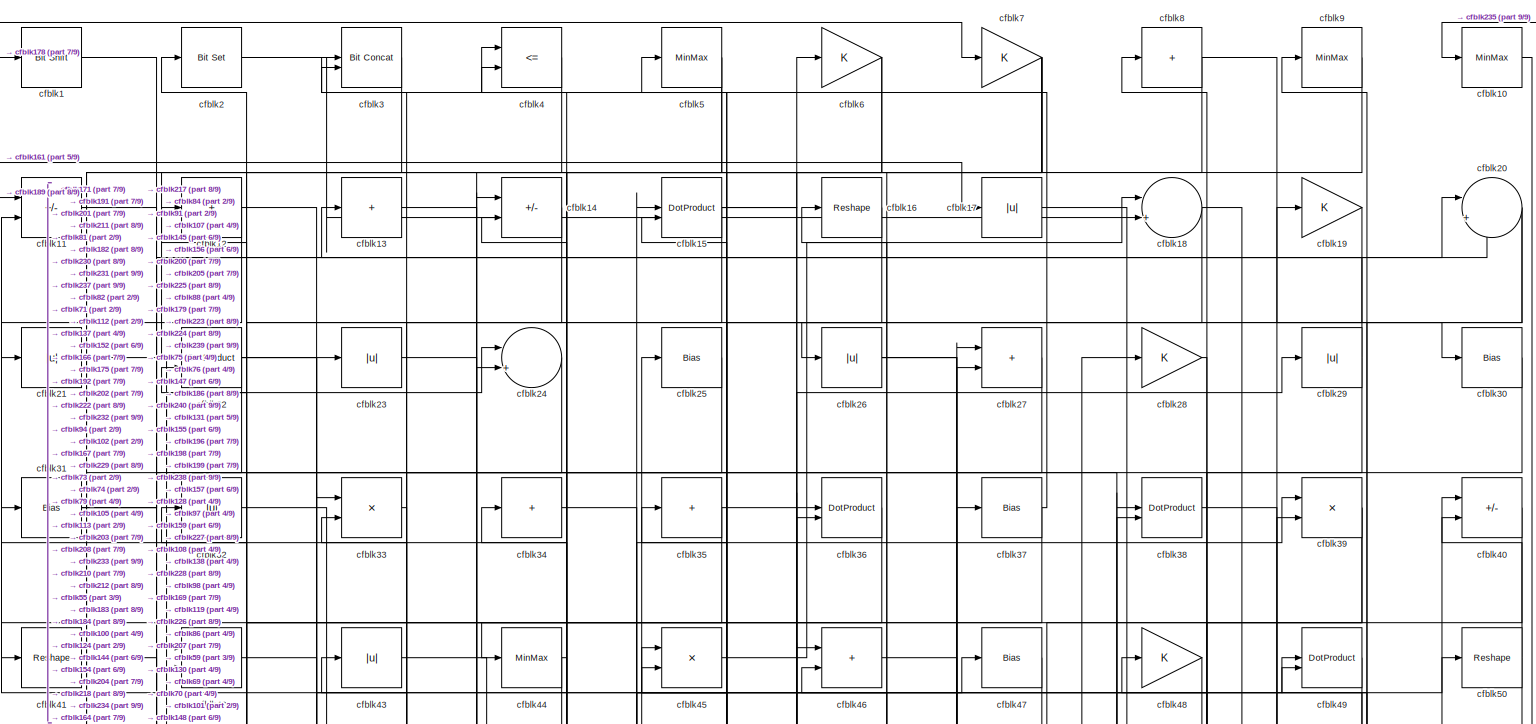
[diagram: root canvas - part 1/9, full width, top band]
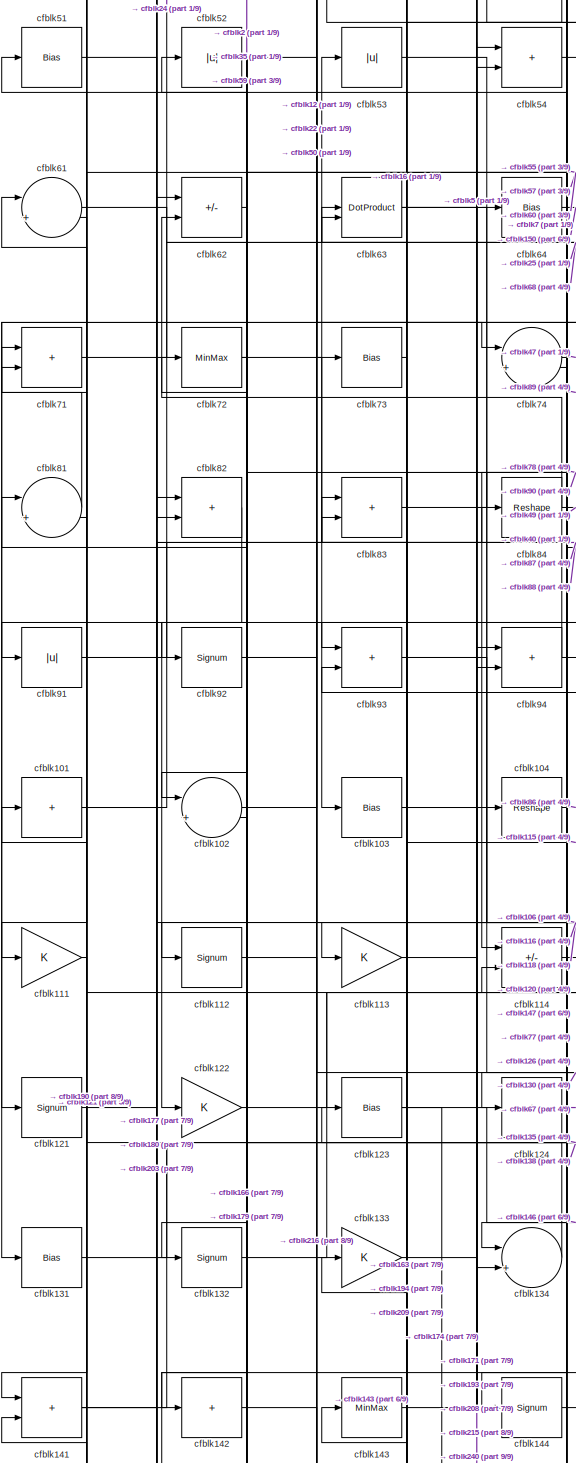
[diagram: root canvas - part 2/9, middle left region]
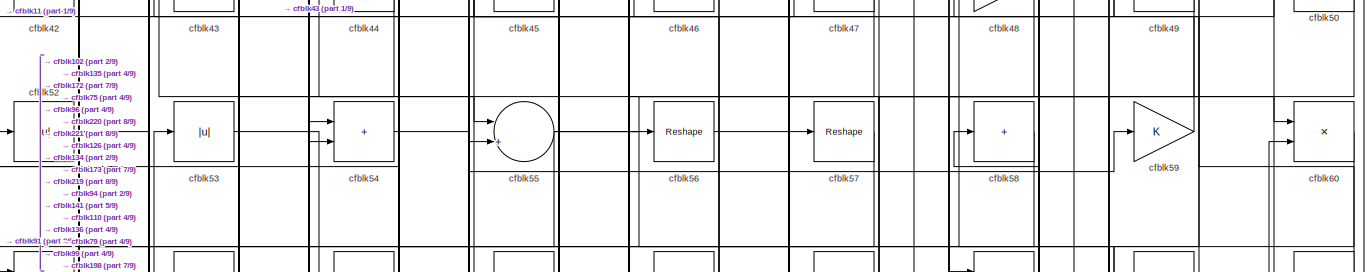
[diagram: root canvas - part 3/9, full width, top band]
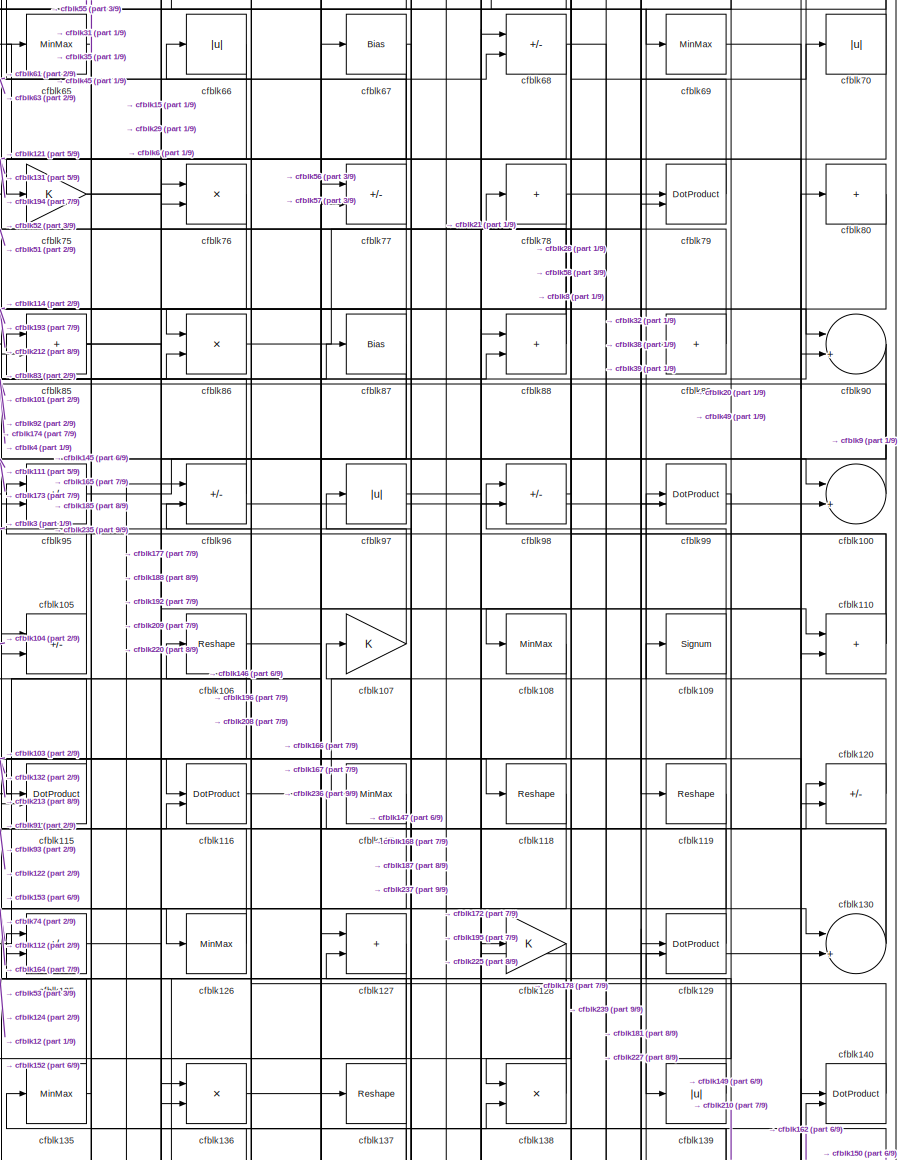
[diagram: root canvas - part 4/9, middle right region]
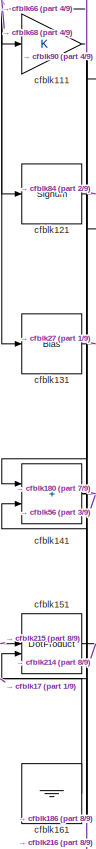
[diagram: root canvas - part 5/9, middle left region]
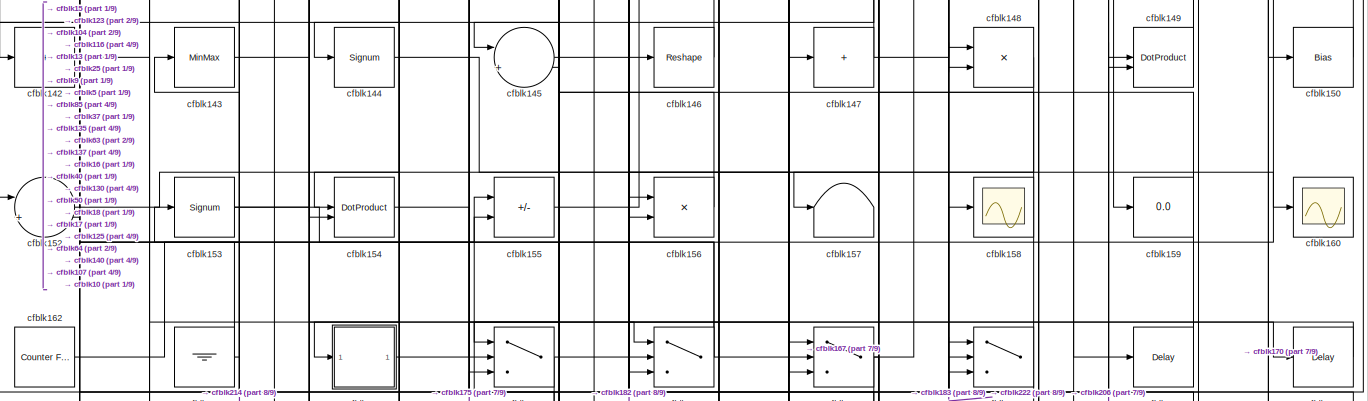
[diagram: root canvas - part 6/9, full width, middle band]
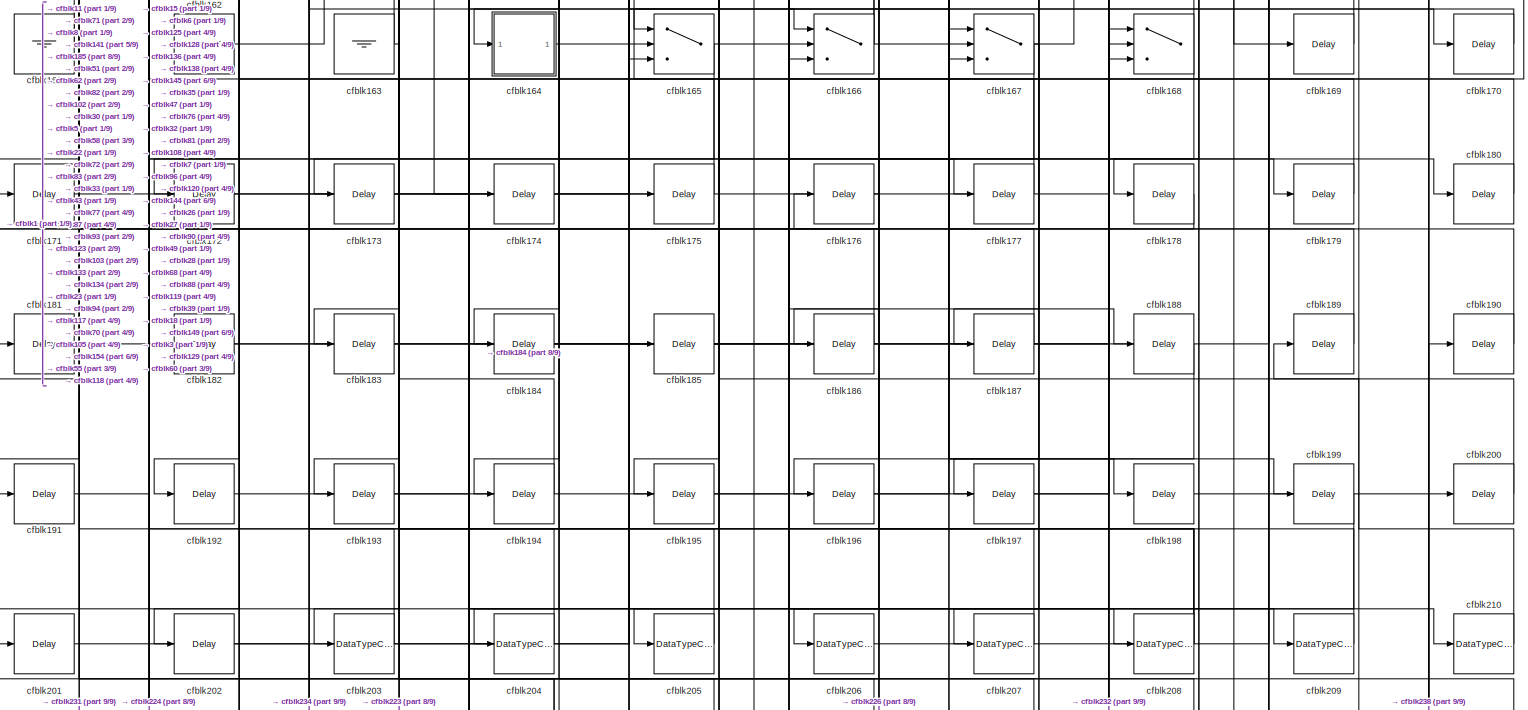
[diagram: root canvas - part 7/9, full width, bottom band]
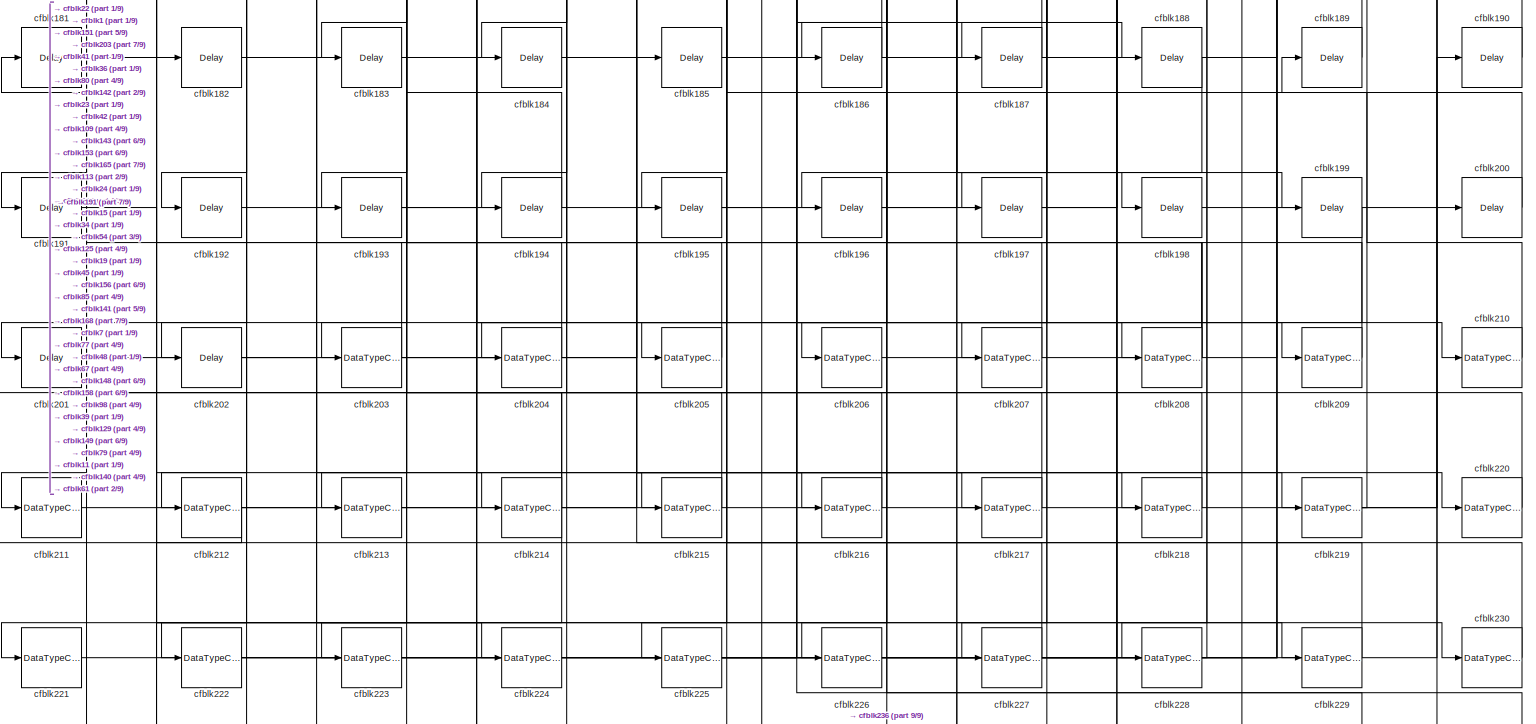
[diagram: root canvas - part 8/9, full width, bottom band]
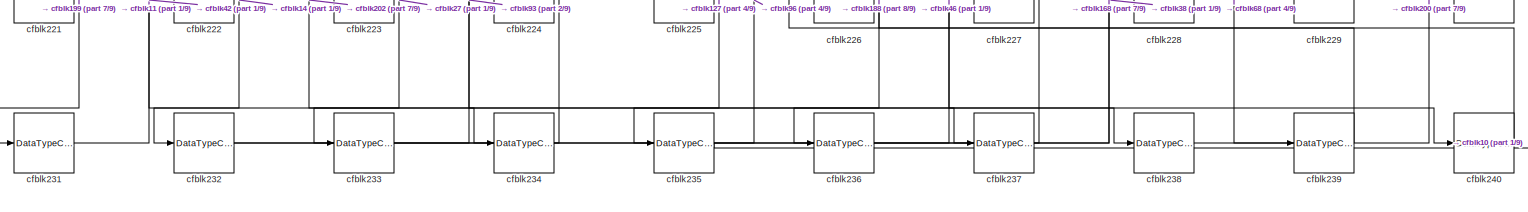
[diagram: root canvas - part 9/9, full width, bottom band]
MODEL slx_803804290df7
KIND model
CONFIG AbsTol = auto
CONFIG EnableMultiTasking = off
CONFIG FixedStep = auto
CONFIG MaxStep = auto
CONFIG MinStep = auto
CONFIG RelTol = 1e-3
CONFIG SampleTimeConstraint = Unconstrained
CONFIG SolverName = VariableStepAuto
CONFIG StartTime = 0.0
CONFIG StopTime = 10.0
BLOCK [Reference] cfblk1  REF=hdlsllib/Logic and Bit
Operations/Bit Shift
  SourceBlock = hdlsllib/Logic and Bit\nOperations/Bit Shift
  SourceType = Bit Shift
BLOCK [MinMax] cfblk10
BLOCK [Sum] cfblk100
  Inputs = |++
BLOCK [Sum] cfblk101
  IconShape = rectangular
  Inputs = +
BLOCK [Sum] cfblk102
  Inputs = |++
BLOCK [Bias] cfblk103
  Bias = 0.0
  SaturateOnIntegerOverflow = off
BLOCK [Reshape] cfblk104
BLOCK [Sum] cfblk105
  IconShape = rectangular
  Inputs = +-
BLOCK [Reshape] cfblk106
BLOCK [Gain] cfblk107
BLOCK [MinMax] cfblk108
BLOCK [Signum] cfblk109
BLOCK [Sum] cfblk11
  IconShape = rectangular
  Inputs = +-
BLOCK [Sum] cfblk110
  IconShape = rectangular
BLOCK [Gain] cfblk111
BLOCK [Signum] cfblk112
BLOCK [Gain] cfblk113
BLOCK [Sum] cfblk114
  IconShape = rectangular
  Inputs = +-
BLOCK [DotProduct] cfblk115
  OutDataTypeStr = Inherit: Inherit via internal rule
BLOCK [DotProduct] cfblk116
  OutDataTypeStr = Inherit: Inherit via internal rule
BLOCK [MinMax] cfblk117
BLOCK [Reshape] cfblk118
BLOCK [Reshape] cfblk119
BLOCK [Sum] cfblk12
  IconShape = rectangular
  Inputs = +
BLOCK [Sum] cfblk120
  IconShape = rectangular
  Inputs = +-
BLOCK [Signum] cfblk121
BLOCK [Gain] cfblk122
BLOCK [Bias] cfblk123
  Bias = 0.0
  SaturateOnIntegerOverflow = off
BLOCK [Sum] cfblk124
  IconShape = rectangular
  Inputs = +
BLOCK [Sum] cfblk125
  IconShape = rectangular
  Inputs = +-
BLOCK [MinMax] cfblk126
BLOCK [Sum] cfblk127
  IconShape = rectangular
BLOCK [Gain] cfblk128
BLOCK [DotProduct] cfblk129
  OutDataTypeStr = Inherit: Inherit via internal rule
BLOCK [Sum] cfblk13
  IconShape = rectangular
  Inputs = +
BLOCK [Sum] cfblk130
  Inputs = |++
BLOCK [Bias] cfblk131
  Bias = 0.0
  SaturateOnIntegerOverflow = off
BLOCK [Signum] cfblk132
BLOCK [Gain] cfblk133
BLOCK [Sum] cfblk134
  Inputs = |++
BLOCK [MinMax] cfblk135
BLOCK [Product] cfblk136
  Inputs = */
  RndMeth = Zero
  SaturateOnIntegerOverflow = on
BLOCK [Reshape] cfblk137
BLOCK [Product] cfblk138
  Inputs = */
  RndMeth = Zero
  SaturateOnIntegerOverflow = on
BLOCK [Abs] cfblk139
  SaturateOnIntegerOverflow = off
BLOCK [Sum] cfblk14
  IconShape = rectangular
  Inputs = +-
BLOCK [DotProduct] cfblk140
  OutDataTypeStr = Inherit: Inherit via internal rule
BLOCK [Sum] cfblk141
  IconShape = rectangular
BLOCK [Sum] cfblk142
  IconShape = rectangular
  Inputs = +
BLOCK [MinMax] cfblk143
BLOCK [Signum] cfblk144
BLOCK [Sum] cfblk145
  Inputs = |++
BLOCK [Reshape] cfblk146
BLOCK [Sum] cfblk147
  IconShape = rectangular
  Inputs = +
BLOCK [Product] cfblk148
  Inputs = */
  RndMeth = Zero
  SaturateOnIntegerOverflow = on
BLOCK [DotProduct] cfblk149
  OutDataTypeStr = Inherit: Inherit via internal rule
BLOCK [DotProduct] cfblk15
  OutDataTypeStr = Inherit: Inherit via internal rule
BLOCK [Bias] cfblk150
  Bias = 0.0
  SaturateOnIntegerOverflow = off
BLOCK [DotProduct] cfblk151
  OutDataTypeStr = Inherit: Inherit via internal rule
BLOCK [Sum] cfblk152
  Inputs = |++
BLOCK [Signum] cfblk153
BLOCK [DotProduct] cfblk154
  OutDataTypeStr = Inherit: Inherit via internal rule
BLOCK [Sum] cfblk155
  IconShape = rectangular
  Inputs = +-
BLOCK [Product] cfblk156
  Inputs = */
  RndMeth = Zero
  SaturateOnIntegerOverflow = on
BLOCK [Terminator] cfblk157
BLOCK [Scope] cfblk158
  Floating = off
  NumInputPorts = 1
  ScopeSpecificationString = Simulink.scopes.TimeScopeBlockCfg('CurrentConfiguration', extmgr.ConfigurationSet(extmgr.Configuration('Core','General UI',true),extmgr.Configuration('Core','Source UI',true),extmgr.Configuration('Sources','WiredSimulink',true,'DataLoggingVariableName','ScopeData2','DataLoggingSaveFormat','Array','DataLoggingLimitDataPoints',true,'DataLoggingDecimation','1'),extmgr.Configuration('Visuals','Time Do...<+868ch>
BLOCK [Display] cfblk159
  Decimation = 1
BLOCK [Reshape] cfblk16
BLOCK [Scope] cfblk160
  Floating = off
  NumInputPorts = 1
  ScopeSpecificationString = Simulink.scopes.TimeScopeBlockCfg('CurrentConfiguration', extmgr.ConfigurationSet(extmgr.Configuration('Core','General UI',true),extmgr.Configuration('Core','Source UI',true),extmgr.Configuration('Sources','WiredSimulink',true,'DataLoggingVariableName','ScopeData2','DataLoggingSaveFormat','Array','DataLoggingLimitDataPoints',true,'DataLoggingDecimation','1'),extmgr.Configuration('Visuals','Time Do...<+868ch>
BLOCK [Ground] cfblk161
BLOCK [Reference] cfblk162  REF=hdlsllib/Sources/Counter
Free-Running
  SourceBlock = hdlsllib/Sources/Counter\nFree-Running
  SourceType = Counter Free-Running
BLOCK [Ground] cfblk163
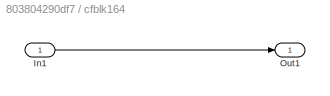
BLOCK [SubSystem] cfblk164
  LibrarySourceBlock = hdlsllib/Ports &\nSubsystems/Subsystem
BLOCK [Inport] cfblk164/In1
BLOCK [Outport] cfblk164/Out1
BLOCK [Switch] cfblk165
  InputSameDT = off
  SaturateOnIntegerOverflow = off
BLOCK [Switch] cfblk166
  InputSameDT = off
  SaturateOnIntegerOverflow = off
BLOCK [Switch] cfblk167
  InputSameDT = off
  SaturateOnIntegerOverflow = off
BLOCK [Switch] cfblk168
  InputSameDT = off
  SaturateOnIntegerOverflow = off
BLOCK [Delay] cfblk169
  InputPortMap = u0
  SampleTime = 1
BLOCK [Abs] cfblk17
  SaturateOnIntegerOverflow = off
BLOCK [Delay] cfblk170
  InputPortMap = u0
  SampleTime = 1
BLOCK [Delay] cfblk171
  InputPortMap = u0
  SampleTime = 1
BLOCK [Delay] cfblk172
  InputPortMap = u0
  SampleTime = 1
BLOCK [Delay] cfblk173
  InputPortMap = u0
  SampleTime = 1
BLOCK [Delay] cfblk174
  InputPortMap = u0
  SampleTime = 1
BLOCK [Delay] cfblk175
  InputPortMap = u0
  SampleTime = 1
BLOCK [Delay] cfblk176
  InputPortMap = u0
  SampleTime = 1
BLOCK [Delay] cfblk177
  InputPortMap = u0
  SampleTime = 1
BLOCK [Delay] cfblk178
  InputPortMap = u0
  SampleTime = 1
BLOCK [Delay] cfblk179
  InputPortMap = u0
  SampleTime = 1
BLOCK [Sum] cfblk18
  Inputs = |++
BLOCK [Delay] cfblk180
  InputPortMap = u0
  SampleTime = 1
BLOCK [Delay] cfblk181
  InputPortMap = u0
  SampleTime = 1
BLOCK [Delay] cfblk182
  InputPortMap = u0
  SampleTime = 1
BLOCK [Delay] cfblk183
  InputPortMap = u0
  SampleTime = 1
BLOCK [Delay] cfblk184
  InputPortMap = u0
  SampleTime = 1
BLOCK [Delay] cfblk185
  InputPortMap = u0
  SampleTime = 1
BLOCK [Delay] cfblk186
  InputPortMap = u0
  SampleTime = 1
BLOCK [Delay] cfblk187
  InputPortMap = u0
  SampleTime = 1
BLOCK [Delay] cfblk188
  InputPortMap = u0
  SampleTime = 1
BLOCK [Delay] cfblk189
  InputPortMap = u0
  SampleTime = 1
BLOCK [Gain] cfblk19
BLOCK [Delay] cfblk190
  InputPortMap = u0
  SampleTime = 1
BLOCK [Delay] cfblk191
  InputPortMap = u0
  SampleTime = 1
BLOCK [Delay] cfblk192
  InputPortMap = u0
  SampleTime = 1
BLOCK [Delay] cfblk193
  InputPortMap = u0
  SampleTime = 1
BLOCK [Delay] cfblk194
  InputPortMap = u0
  SampleTime = 1
BLOCK [Delay] cfblk195
  InputPortMap = u0
  SampleTime = 1
BLOCK [Delay] cfblk196
  InputPortMap = u0
  SampleTime = 1
BLOCK [Delay] cfblk197
  InputPortMap = u0
  SampleTime = 1
BLOCK [Delay] cfblk198
  InputPortMap = u0
  SampleTime = 1
BLOCK [Delay] cfblk199
  InputPortMap = u0
  SampleTime = 1
BLOCK [Reference] cfblk2  REF=simulink/Logic and Bit
Operations/Bit Set
  LibrarySourceBlock = hdlsllib/Logic and Bit\nOperations/Bit Set
  SourceBlock = simulink/Logic and Bit\nOperations/Bit Set
  SourceType = Bit Set
BLOCK [Sum] cfblk20
  Inputs = |++
BLOCK [Delay] cfblk200
  InputPortMap = u0
  SampleTime = 1
BLOCK [Delay] cfblk201
  InputPortMap = u0
  SampleTime = 1
BLOCK [Delay] cfblk202
  InputPortMap = u0
  SampleTime = 1
BLOCK [DataTypeConversion] cfblk203
  RndMeth = Floor
  SaturateOnIntegerOverflow = off
BLOCK [DataTypeConversion] cfblk204
  OutDataTypeStr = uint8
  RndMeth = Floor
  SaturateOnIntegerOverflow = off
BLOCK [DataTypeConversion] cfblk205
  OutDataTypeStr = uint8
  RndMeth = Floor
  SaturateOnIntegerOverflow = off
BLOCK [DataTypeConversion] cfblk206
  OutDataTypeStr = uint8
  RndMeth = Floor
  SaturateOnIntegerOverflow = off
BLOCK [DataTypeConversion] cfblk207
  OutDataTypeStr = uint8
  RndMeth = Floor
  SaturateOnIntegerOverflow = off
BLOCK [DataTypeConversion] cfblk208
  RndMeth = Floor
  SaturateOnIntegerOverflow = off
BLOCK [DataTypeConversion] cfblk209
  OutDataTypeStr = uint8
  RndMeth = Floor
  SaturateOnIntegerOverflow = off
BLOCK [Abs] cfblk21
  SaturateOnIntegerOverflow = off
BLOCK [DataTypeConversion] cfblk210
  OutDataTypeStr = uint8
  RndMeth = Floor
  SaturateOnIntegerOverflow = off
BLOCK [DataTypeConversion] cfblk211
  OutDataTypeStr = uint8
  RndMeth = Floor
  SaturateOnIntegerOverflow = off
BLOCK [DataTypeConversion] cfblk212
  RndMeth = Floor
  SaturateOnIntegerOverflow = off
BLOCK [DataTypeConversion] cfblk213
  OutDataTypeStr = uint8
  RndMeth = Floor
  SaturateOnIntegerOverflow = off
BLOCK [DataTypeConversion] cfblk214
  RndMeth = Floor
  SaturateOnIntegerOverflow = off
BLOCK [DataTypeConversion] cfblk215
  OutDataTypeStr = uint8
  RndMeth = Floor
  SaturateOnIntegerOverflow = off
BLOCK [DataTypeConversion] cfblk216
  OutDataTypeStr = uint8
  RndMeth = Floor
  SaturateOnIntegerOverflow = off
BLOCK [DataTypeConversion] cfblk217
  OutDataTypeStr = uint8
  RndMeth = Floor
  SaturateOnIntegerOverflow = off
BLOCK [DataTypeConversion] cfblk218
  OutDataTypeStr = uint8
  RndMeth = Floor
  SaturateOnIntegerOverflow = off
BLOCK [DataTypeConversion] cfblk219
  RndMeth = Floor
  SaturateOnIntegerOverflow = off
BLOCK [DotProduct] cfblk22
  OutDataTypeStr = Inherit: Inherit via internal rule
BLOCK [DataTypeConversion] cfblk220
  OutDataTypeStr = uint8
  RndMeth = Floor
  SaturateOnIntegerOverflow = off
BLOCK [DataTypeConversion] cfblk221
  OutDataTypeStr = uint8
  RndMeth = Floor
  SaturateOnIntegerOverflow = off
BLOCK [DataTypeConversion] cfblk222
  RndMeth = Floor
  SaturateOnIntegerOverflow = off
BLOCK [DataTypeConversion] cfblk223
  OutDataTypeStr = uint8
  RndMeth = Floor
  SaturateOnIntegerOverflow = off
BLOCK [DataTypeConversion] cfblk224
  OutDataTypeStr = uint8
  RndMeth = Floor
  SaturateOnIntegerOverflow = off
BLOCK [DataTypeConversion] cfblk225
  RndMeth = Floor
  SaturateOnIntegerOverflow = off
BLOCK [DataTypeConversion] cfblk226
  OutDataTypeStr = uint8
  RndMeth = Floor
  SaturateOnIntegerOverflow = off
BLOCK [DataTypeConversion] cfblk227
  RndMeth = Floor
  SaturateOnIntegerOverflow = off
BLOCK [DataTypeConversion] cfblk228
  OutDataTypeStr = uint8
  RndMeth = Floor
  SaturateOnIntegerOverflow = off
BLOCK [DataTypeConversion] cfblk229
  OutDataTypeStr = uint8
  RndMeth = Floor
  SaturateOnIntegerOverflow = off
BLOCK [Abs] cfblk23
  SaturateOnIntegerOverflow = off
BLOCK [DataTypeConversion] cfblk230
  OutDataTypeStr = uint8
  RndMeth = Floor
  SaturateOnIntegerOverflow = off
BLOCK [DataTypeConversion] cfblk231
  OutDataTypeStr = uint8
  RndMeth = Floor
  SaturateOnIntegerOverflow = off
BLOCK [DataTypeConversion] cfblk232
  RndMeth = Floor
  SaturateOnIntegerOverflow = off
BLOCK [DataTypeConversion] cfblk233
  OutDataTypeStr = uint8
  RndMeth = Floor
  SaturateOnIntegerOverflow = off
BLOCK [DataTypeConversion] cfblk234
  OutDataTypeStr = uint8
  RndMeth = Floor
  SaturateOnIntegerOverflow = off
BLOCK [DataTypeConversion] cfblk235
  RndMeth = Floor
  SaturateOnIntegerOverflow = off
BLOCK [DataTypeConversion] cfblk236
  OutDataTypeStr = uint8
  RndMeth = Floor
  SaturateOnIntegerOverflow = off
BLOCK [DataTypeConversion] cfblk237
  OutDataTypeStr = uint8
  RndMeth = Floor
  SaturateOnIntegerOverflow = off
BLOCK [DataTypeConversion] cfblk238
  OutDataTypeStr = uint8
  RndMeth = Floor
  SaturateOnIntegerOverflow = off
BLOCK [DataTypeConversion] cfblk239
  OutDataTypeStr = uint8
  RndMeth = Floor
  SaturateOnIntegerOverflow = off
BLOCK [Sum] cfblk24
  Inputs = |++
BLOCK [DataTypeConversion] cfblk240
  OutDataTypeStr = uint8
  RndMeth = Floor
  SaturateOnIntegerOverflow = off
BLOCK [Bias] cfblk25
  Bias = 0.0
  SaturateOnIntegerOverflow = off
BLOCK [Abs] cfblk26
  SaturateOnIntegerOverflow = off
BLOCK [Sum] cfblk27
  IconShape = rectangular
BLOCK [Gain] cfblk28
BLOCK [Abs] cfblk29
  SaturateOnIntegerOverflow = off
BLOCK [Reference] cfblk3  REF=hdlsllib/Logic and Bit
Operations/Bit Concat
  SourceBlock = hdlsllib/Logic and Bit\nOperations/Bit Concat
  SourceType = Bit Concat
BLOCK [Bias] cfblk30
  Bias = 0.0
  SaturateOnIntegerOverflow = off
BLOCK [Bias] cfblk31
  Bias = 0.0
  SaturateOnIntegerOverflow = off
BLOCK [Abs] cfblk32
  SaturateOnIntegerOverflow = off
BLOCK [Product] cfblk33
  Inputs = */
  RndMeth = Zero
  SaturateOnIntegerOverflow = on
BLOCK [Sum] cfblk34
  IconShape = rectangular
  Inputs = +
BLOCK [Sum] cfblk35
  IconShape = rectangular
  Inputs = +
BLOCK [DotProduct] cfblk36
  OutDataTypeStr = Inherit: Inherit via internal rule
BLOCK [Bias] cfblk37
  Bias = 0.0
  SaturateOnIntegerOverflow = off
BLOCK [DotProduct] cfblk38
  OutDataTypeStr = Inherit: Inherit via internal rule
BLOCK [Product] cfblk39
  Inputs = */
  RndMeth = Zero
  SaturateOnIntegerOverflow = on
BLOCK [RelationalOperator] cfblk4
  InputSameDT = off
  Operator = <=
  OutDataTypeStr = boolean
BLOCK [Sum] cfblk40
  IconShape = rectangular
  Inputs = +-
BLOCK [Reshape] cfblk41
BLOCK [Product] cfblk42
  Inputs = */
  RndMeth = Zero
  SaturateOnIntegerOverflow = on
BLOCK [Abs] cfblk43
  SaturateOnIntegerOverflow = off
BLOCK [MinMax] cfblk44
BLOCK [Product] cfblk45
  Inputs = */
  RndMeth = Zero
  SaturateOnIntegerOverflow = on
BLOCK [Sum] cfblk46
  IconShape = rectangular
BLOCK [Bias] cfblk47
  Bias = 0.0
  SaturateOnIntegerOverflow = off
BLOCK [Gain] cfblk48
BLOCK [DotProduct] cfblk49
  OutDataTypeStr = Inherit: Inherit via internal rule
BLOCK [MinMax] cfblk5
BLOCK [Reshape] cfblk50
BLOCK [Bias] cfblk51
  Bias = 0.0
  SaturateOnIntegerOverflow = off
BLOCK [Abs] cfblk52
  SaturateOnIntegerOverflow = off
BLOCK [Abs] cfblk53
  SaturateOnIntegerOverflow = off
BLOCK [Sum] cfblk54
  IconShape = rectangular
BLOCK [Sum] cfblk55
  Inputs = |++
BLOCK [Reshape] cfblk56
BLOCK [Reshape] cfblk57
BLOCK [Sum] cfblk58
  IconShape = rectangular
  Inputs = +
BLOCK [Gain] cfblk59
BLOCK [Gain] cfblk6
BLOCK [Product] cfblk60
  Inputs = */
  RndMeth = Zero
  SaturateOnIntegerOverflow = on
BLOCK [Sum] cfblk61
  Inputs = |++
BLOCK [Sum] cfblk62
  IconShape = rectangular
  Inputs = +-
BLOCK [DotProduct] cfblk63
  OutDataTypeStr = Inherit: Inherit via internal rule
BLOCK [Bias] cfblk64
  Bias = 0.0
  SaturateOnIntegerOverflow = off
BLOCK [MinMax] cfblk65
BLOCK [Abs] cfblk66
  SaturateOnIntegerOverflow = off
BLOCK [Bias] cfblk67
  Bias = 0.0
  SaturateOnIntegerOverflow = off
BLOCK [Sum] cfblk68
  IconShape = rectangular
  Inputs = +-
BLOCK [MinMax] cfblk69
BLOCK [Gain] cfblk7
BLOCK [Abs] cfblk70
  SaturateOnIntegerOverflow = off
BLOCK [Sum] cfblk71
  IconShape = rectangular
BLOCK [MinMax] cfblk72
BLOCK [Bias] cfblk73
  Bias = 0.0
  SaturateOnIntegerOverflow = off
BLOCK [Sum] cfblk74
  Inputs = |++
BLOCK [Gain] cfblk75
BLOCK [Product] cfblk76
  Inputs = */
  RndMeth = Zero
  SaturateOnIntegerOverflow = on
BLOCK [Sum] cfblk77
  IconShape = rectangular
  Inputs = +-
BLOCK [Sum] cfblk78
  IconShape = rectangular
  Inputs = +
BLOCK [DotProduct] cfblk79
  OutDataTypeStr = Inherit: Inherit via internal rule
BLOCK [Sum] cfblk8
  IconShape = rectangular
  Inputs = +
BLOCK [Sum] cfblk80
  IconShape = rectangular
  Inputs = +
BLOCK [Sum] cfblk81
  Inputs = |++
BLOCK [Sum] cfblk82
  IconShape = rectangular
BLOCK [Sum] cfblk83
  IconShape = rectangular
BLOCK [Reshape] cfblk84
BLOCK [Sum] cfblk85
  IconShape = rectangular
BLOCK [Product] cfblk86
  Inputs = */
  RndMeth = Zero
  SaturateOnIntegerOverflow = on
BLOCK [Bias] cfblk87
  Bias = 0.0
  SaturateOnIntegerOverflow = off
BLOCK [Sum] cfblk88
  IconShape = rectangular
BLOCK [Sum] cfblk89
  IconShape = rectangular
  Inputs = +
BLOCK [MinMax] cfblk9
BLOCK [Sum] cfblk90
  Inputs = |++
BLOCK [Abs] cfblk91
  SaturateOnIntegerOverflow = off
BLOCK [Signum] cfblk92
BLOCK [Sum] cfblk93
  IconShape = rectangular
BLOCK [Sum] cfblk94
  IconShape = rectangular
BLOCK [Sum] cfblk95
  IconShape = rectangular
  Inputs = +-
BLOCK [Sum] cfblk96
  IconShape = rectangular
  Inputs = +-
BLOCK [Abs] cfblk97
  SaturateOnIntegerOverflow = off
BLOCK [Sum] cfblk98
  IconShape = rectangular
  Inputs = +-
BLOCK [DotProduct] cfblk99
  OutDataTypeStr = Inherit: Inherit via internal rule
LINE cfblk100:1 -> cfblk4:2
NET cfblk101:1 -> cfblk40:1, cfblk88:2
LINE cfblk102:1 -> cfblk50:1
NET cfblk103:1 -> cfblk116:1, cfblk166:1
LINE cfblk104:1 -> cfblk86:2
LINE cfblk105:1 -> cfblk3:1
NET cfblk106:1 -> cfblk132:1, cfblk137:1
LINE cfblk107:1 -> cfblk45:1
LINE cfblk108:1 -> cfblk196:1
NET cfblk109:1 -> cfblk213:1, cfblk98:1
LINE cfblk10:1 -> cfblk155:1
NET cfblk110:1 -> cfblk78:1, cfblk95:1
LINE cfblk111:1 -> cfblk141:1
LINE cfblk112:1 -> cfblk130:1
LINE cfblk113:1 -> cfblk215:1
LINE cfblk114:1 -> cfblk77:2
LINE cfblk115:1 -> cfblk83:1
LINE cfblk116:1 -> cfblk109:1
LINE cfblk117:1 -> cfblk164:1
LINE cfblk118:1 -> cfblk165:1
LINE cfblk119:1 -> cfblk178:1
NET cfblk11:1 -> cfblk201:1, cfblk237:1
LINE cfblk120:1 -> cfblk99:1
LINE cfblk121:1 -> cfblk84:1
LINE cfblk122:1 -> cfblk89:1
NET cfblk123:1 -> cfblk146:1, cfblk174:1
LINE cfblk124:1 -> cfblk67:1
LINE cfblk125:1 -> cfblk209:1
LINE cfblk126:1 -> cfblk61:1
LINE cfblk127:1 -> cfblk235:1
LINE cfblk128:1 -> cfblk166:3
LINE cfblk129:1 -> cfblk66:1
NET cfblk12:1 -> cfblk73:1, cfblk81:2
NET cfblk130:1 -> cfblk49:1, cfblk74:2
LINE cfblk131:1 -> cfblk27:2
LINE cfblk132:1 -> cfblk114:2
LINE cfblk133:1 -> cfblk208:1
LINE cfblk134:1 -> cfblk123:1
NET cfblk135:1 -> cfblk52:1, cfblk63:2, cfblk65:1
LINE cfblk136:1 -> cfblk57:1
NET cfblk137:1 -> cfblk12:1, cfblk152:1
LINE cfblk138:1 -> cfblk101:1
LINE cfblk139:1 -> cfblk97:1
LINE cfblk13:1 -> cfblk154:2
LINE cfblk140:1 -> cfblk106:1
NET cfblk141:1 -> cfblk180:1, cfblk56:1
LINE cfblk142:1 -> cfblk216:1
LINE cfblk143:1 -> cfblk104:1
LINE cfblk144:1 -> cfblk167:1
LINE cfblk145:1 -> cfblk170:1
LINE cfblk146:1 -> cfblk135:1
NET cfblk147:1 -> cfblk130:2, cfblk16:1
LINE cfblk148:1 -> cfblk156:2
NET cfblk149:1 -> cfblk125:1, cfblk85:1
LINE cfblk14:1 -> cfblk232:1
LINE cfblk150:1 -> cfblk107:1
LINE cfblk151:1 -> cfblk214:1
LINE cfblk152:1 -> cfblk160:1
NET cfblk153:1 -> cfblk116:2, cfblk155:2
LINE cfblk154:1 -> cfblk175:1
LINE cfblk155:1 -> cfblk37:1
LINE cfblk156:1 -> cfblk5:1
NET cfblk15:1 -> cfblk100:2, cfblk152:2, cfblk6:1
LINE cfblk161:1 -> cfblk17:1
LINE cfblk162:1 -> cfblk140:2
NET cfblk163:1 -> cfblk72:1, cfblk83:2
LINE cfblk164/In1:1 -> cfblk164/Out1:1
LINE cfblk164:1 -> cfblk39:1
NET cfblk165:1 -> cfblk138:2, cfblk223:1
NET cfblk166:1 -> cfblk120:1, cfblk32:1, cfblk81:1
NET cfblk167:1 -> cfblk195:1, cfblk197:1, cfblk28:1
NET cfblk168:1 -> cfblk117:1, cfblk226:1
LINE cfblk169:1 -> cfblk3:2
LINE cfblk16:1 -> cfblk113:1
LINE cfblk170:1 -> cfblk165:2
LINE cfblk171:1 -> cfblk94:1
LINE cfblk172:1 -> cfblk68:1
LINE cfblk173:1 -> cfblk55:2
LINE cfblk174:1 -> cfblk105:1
LINE cfblk175:1 -> cfblk22:2
LINE cfblk176:1 -> cfblk206:1
LINE cfblk177:1 -> cfblk76:1
LINE cfblk178:1 -> cfblk1:1
LINE cfblk179:1 -> cfblk102:2
LINE cfblk17:1 -> cfblk159:1
LINE cfblk180:1 -> cfblk62:1
LINE cfblk181:1 -> cfblk129:1
LINE cfblk182:1 -> cfblk156:1
LINE cfblk183:1 -> cfblk148:1
LINE cfblk184:1 -> cfblk168:2
LINE cfblk185:1 -> cfblk125:2
LINE cfblk186:1 -> cfblk141:2
LINE cfblk187:1 -> cfblk77:1
LINE cfblk188:1 -> cfblk236:1
LINE cfblk189:1 -> cfblk11:1
NET cfblk18:1 -> cfblk145:1, cfblk169:1
LINE cfblk190:1 -> cfblk61:2
LINE cfblk191:1 -> cfblk224:1
LINE cfblk192:1 -> cfblk136:1
LINE cfblk193:1 -> cfblk134:2
LINE cfblk194:1 -> cfblk93:2
LINE cfblk195:1 -> cfblk88:1
LINE cfblk196:1 -> cfblk27:1
LINE cfblk197:1 -> cfblk168:3
LINE cfblk198:1 -> cfblk60:2
LINE cfblk199:1 -> cfblk231:1
LINE cfblk19:1 -> cfblk225:1
LINE cfblk1:1 -> cfblk230:1
LINE cfblk200:1 -> cfblk15:2
LINE cfblk201:1 -> cfblk165:3
LINE cfblk202:1 -> cfblk234:1
NET cfblk203:1 -> cfblk185:1, cfblk82:1
LINE cfblk204:1 -> cfblk33:1
LINE cfblk205:1 -> cfblk33:2
LINE cfblk206:1 -> cfblk149:2
LINE cfblk207:1 -> cfblk176:1
NET cfblk208:1 -> cfblk43:1, cfblk71:2, cfblk96:2
LINE cfblk209:1 -> cfblk133:1
NET cfblk20:1 -> cfblk26:1, cfblk69:1
LINE cfblk210:1 -> cfblk129:2
LINE cfblk211:1 -> cfblk23:1
NET cfblk212:1 -> cfblk24:2, cfblk7:1
LINE cfblk213:1 -> cfblk80:1
NET cfblk214:1 -> cfblk143:1, cfblk153:1, cfblk218:1, cfblk221:1
LINE cfblk215:1 -> cfblk151:1
LINE cfblk216:1 -> cfblk151:2
LINE cfblk217:1 -> cfblk181:1
LINE cfblk218:1 -> cfblk34:1
NET cfblk219:1 -> cfblk189:1, cfblk190:1
LINE cfblk21:1 -> cfblk128:1
LINE cfblk220:1 -> cfblk54:1
LINE cfblk221:1 -> cfblk54:2
NET cfblk222:1 -> cfblk149:1, cfblk158:1
LINE cfblk223:1 -> cfblk36:1
LINE cfblk224:1 -> cfblk36:2
NET cfblk225:1 -> cfblk140:1, cfblk98:2
LINE cfblk226:1 -> cfblk19:1
NET cfblk227:1 -> cfblk45:2, cfblk79:1
LINE cfblk228:1 -> cfblk48:1
LINE cfblk229:1 -> cfblk15:1
NET cfblk22:1 -> cfblk167:3, cfblk211:1, cfblk74:1
LINE cfblk230:1 -> cfblk42:1
LINE cfblk231:1 -> cfblk42:2
NET cfblk232:1 -> cfblk168:1, cfblk38:2
LINE cfblk233:1 -> cfblk14:1
LINE cfblk234:1 -> cfblk14:2
NET cfblk235:1 -> cfblk10:1, cfblk96:1
LINE cfblk236:1 -> cfblk127:1
LINE cfblk237:1 -> cfblk127:2
LINE cfblk238:1 -> cfblk200:1
LINE cfblk239:1 -> cfblk46:1
LINE cfblk23:1 -> cfblk210:1
LINE cfblk240:1 -> cfblk46:2
LINE cfblk24:1 -> cfblk82:2
LINE cfblk25:1 -> cfblk154:1
NET cfblk26:1 -> cfblk198:1, cfblk199:1
LINE cfblk27:1 -> cfblk233:1
LINE cfblk28:1 -> cfblk108:1
NET cfblk29:1 -> cfblk138:1, cfblk13:1
LINE cfblk2:1 -> cfblk18:2
LINE cfblk30:1 -> cfblk192:1
NET cfblk31:1 -> cfblk20:1, cfblk20:2
LINE cfblk32:1 -> cfblk79:2
LINE cfblk33:1 -> cfblk203:1
LINE cfblk34:1 -> cfblk217:1
NET cfblk35:1 -> cfblk112:1, cfblk179:1
LINE cfblk36:1 -> cfblk222:1
NET cfblk37:1 -> cfblk44:1, cfblk4:1
LINE cfblk38:1 -> cfblk119:1
NET cfblk39:1 -> cfblk171:1, cfblk228:1
LINE cfblk3:1 -> cfblk22:1
LINE cfblk40:1 -> cfblk157:1
LINE cfblk41:1 -> cfblk182:1
LINE cfblk42:1 -> cfblk229:1
LINE cfblk43:1 -> cfblk55:1
NET cfblk44:1 -> cfblk183:1, cfblk184:1
LINE cfblk45:1 -> cfblk18:1
LINE cfblk46:1 -> cfblk238:1
LINE cfblk47:1 -> cfblk166:2
LINE cfblk48:1 -> cfblk227:1
LINE cfblk49:1 -> cfblk207:1
LINE cfblk4:1 -> cfblk41:1
NET cfblk50:1 -> cfblk148:2, cfblk40:2
LINE cfblk51:1 -> cfblk177:1
LINE cfblk52:1 -> cfblk75:1
LINE cfblk53:1 -> cfblk126:1
LINE cfblk54:1 -> cfblk219:1
NET cfblk55:1 -> cfblk60:1, cfblk91:1, cfblk99:2
LINE cfblk56:1 -> cfblk110:1
LINE cfblk57:1 -> cfblk134:1
LINE cfblk58:1 -> cfblk172:1
LINE cfblk59:1 -> cfblk11:2
NET cfblk5:1 -> cfblk202:1, cfblk94:2
LINE cfblk60:1 -> cfblk102:1
LINE cfblk61:1 -> cfblk68:2
LINE cfblk62:1 -> cfblk92:1
NET cfblk63:1 -> cfblk147:1, cfblk64:1
LINE cfblk64:1 -> cfblk150:1
LINE cfblk65:1 -> cfblk115:1
LINE cfblk66:1 -> cfblk131:1
NET cfblk67:1 -> cfblk187:1, cfblk85:2, cfblk95:2
NET cfblk68:1 -> cfblk121:1, cfblk239:1
LINE cfblk69:1 -> cfblk90:2
NET cfblk6:1 -> cfblk205:1, cfblk76:2
NET cfblk70:1 -> cfblk194:1, cfblk9:1
LINE cfblk71:1 -> cfblk24:1
NET cfblk72:1 -> cfblk103:1, cfblk142:1
LINE cfblk73:1 -> cfblk93:1
LINE cfblk74:1 -> cfblk47:1
NET cfblk75:1 -> cfblk110:2, cfblk29:1
LINE cfblk76:1 -> cfblk105:2
NET cfblk77:1 -> cfblk193:1, cfblk63:1
NET cfblk78:1 -> cfblk114:1, cfblk70:1
LINE cfblk79:1 -> cfblk58:1
NET cfblk7:1 -> cfblk124:1, cfblk186:1, cfblk204:1, cfblk21:1
LINE cfblk80:1 -> cfblk212:1
LINE cfblk81:1 -> cfblk71:1
LINE cfblk82:1 -> cfblk122:1
LINE cfblk83:1 -> cfblk90:1
NET cfblk84:1 -> cfblk49:2, cfblk62:2
NET cfblk85:1 -> cfblk145:2, cfblk188:1, cfblk220:1
LINE cfblk86:1 -> cfblk39:2
NET cfblk87:1 -> cfblk136:2, cfblk173:1, cfblk86:1
NET cfblk88:1 -> cfblk31:1, cfblk35:1
LINE cfblk89:1 -> cfblk51:1
NET cfblk8:1 -> cfblk191:1, cfblk30:1
NET cfblk90:1 -> cfblk111:1, cfblk167:2
NET cfblk91:1 -> cfblk120:2, cfblk25:1
NET cfblk92:1 -> cfblk115:2, cfblk87:1
NET cfblk93:1 -> cfblk118:1, cfblk240:1
NET cfblk94:1 -> cfblk2:1, cfblk59:1
LINE cfblk95:1 -> cfblk100:1
LINE cfblk96:1 -> cfblk53:1
LINE cfblk97:1 -> cfblk38:1
LINE cfblk98:1 -> cfblk8:1
LINE cfblk99:1 -> cfblk139:1
LINE cfblk9:1 -> cfblk144:1
note: NET lines group one-source signal fan-out (src -> all destinations, sorted); 1:1 wires keep LINE
